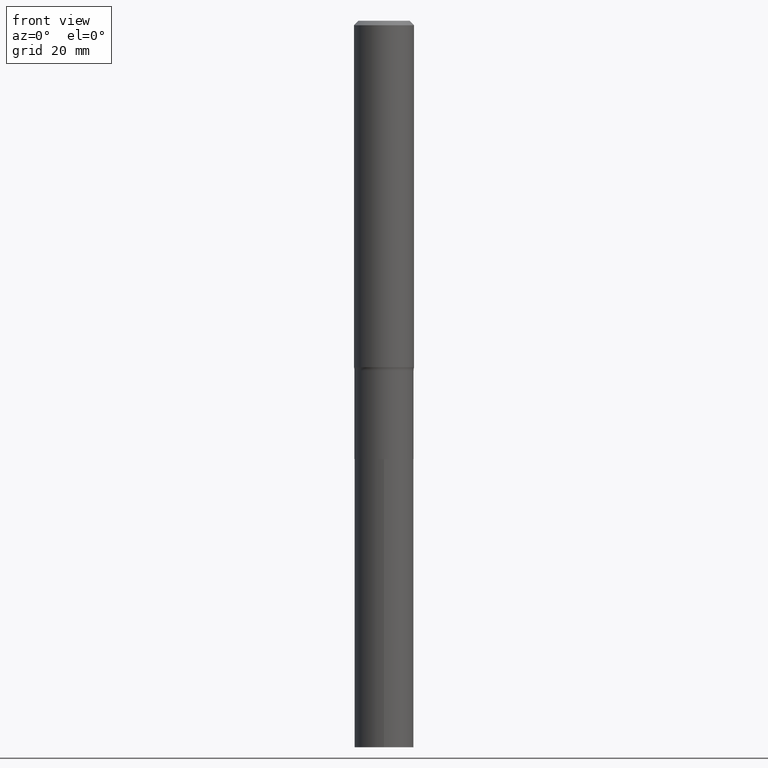
[diagram: clean part render]
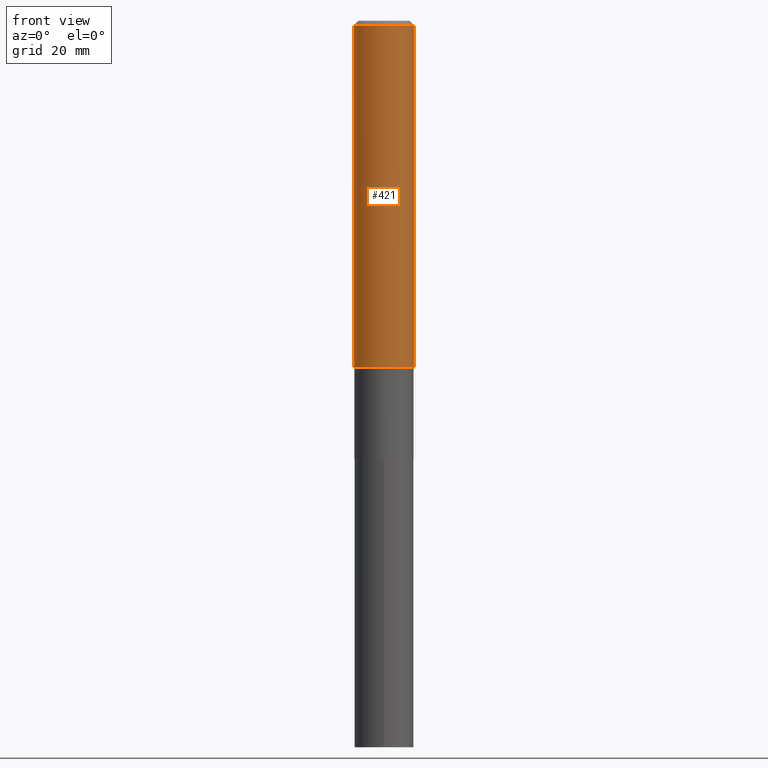
[diagram: same view with one face highlighted and labeled with its STEP entity id]
A machine part, front view. The second image highlights one B-rep face of the part: STEP entity #421.
In plain terms, the highlighted cylindrical surface (edge-blend (fillet) strip) has radius 5.9995 mm, axis along (-0, 0, 1).
Its self-contained STEP definition (entity closure, byte-faithful):
#4 = DIRECTION ( 'NONE',  ( -2.445468806185136877E-29, 3.491481338843145188E-15, 1.000000000000000000 ) ) ;
#8 = EDGE_CURVE ( 'NONE', #22, #366, #183, .T. ) ;
#22 = VERTEX_POINT ( 'NONE', #78 ) ;
#29 = DIRECTION ( 'NONE',  ( 1.000000000000000000, -6.982962677686266711E-15, 4.876176775795936353E-29 ) ) ;
#75 = EDGE_CURVE ( 'NONE', #22, #268, #324, .T. ) ;
#76 = CIRCLE ( 'NONE', #364, 0.2361999999999999933 ) ;
#78 = CARTESIAN_POINT ( 'NONE',  ( -0.2362000000000003264, -7.826649636953230202E-15, -2.722326329823066882 ) ) ;
#88 = ORIENTED_EDGE ( 'NONE', *, *, #233, .T. ) ;
#92 = CARTESIAN_POINT ( 'NONE',  ( 6.657364119838780176E-29, -9.504951578818589752E-15, -2.722326329823066882 ) ) ;
#122 = EDGE_LOOP ( 'NONE', ( #259, #201, #88, #257 ) ) ;
#142 = AXIS2_PLACEMENT_3D ( 'NONE', #350, #208, #29 ) ;
#159 = DIRECTION ( 'NONE',  ( 1.000000000000000000, -6.982962677686263555E-15, 0.000000000000000000 ) ) ;
#173 = CARTESIAN_POINT ( 'NONE',  ( 0.2362000000000001598, -1.649375784469497314E-15, 1.151752954443000929E-29 ) ) ;
#182 = EDGE_CURVE ( 'NONE', #366, #328, #76, .T. ) ;
#183 = LINE ( 'NONE', #433, #454 ) ;
#194 = CARTESIAN_POINT ( 'NONE',  ( 0.2362000000000003264, -1.115432736328808628E-14, -2.722326329823066882 ) ) ;
#201 = ORIENTED_EDGE ( 'NONE', *, *, #75, .T. ) ;
#208 = DIRECTION ( 'NONE',  ( -2.445468806185136597E-29, 3.491481338843145583E-15, 1.000000000000000000 ) ) ;
#233 = EDGE_CURVE ( 'NONE', #268, #328, #351, .T. ) ;
#257 = ORIENTED_EDGE ( 'NONE', *, *, #182, .F. ) ;
#259 = ORIENTED_EDGE ( 'NONE', *, *, #8, .F. ) ;
#268 = VERTEX_POINT ( 'NONE', #194 ) ;
#281 = FACE_OUTER_BOUND ( 'NONE', #122, .T. ) ;
#283 = DIRECTION ( 'NONE',  ( 1.000000000000000000, -6.982962677686266711E-15, 0.000000000000000000 ) ) ;
#300 = DIRECTION ( 'NONE',  ( -2.445468806185136597E-29, 3.491481338843145583E-15, 1.000000000000000000 ) ) ;
#324 = CIRCLE ( 'NONE', #440, 0.2362000000000003264 ) ;
#328 = VERTEX_POINT ( 'NONE', #344 ) ;
#344 = CARTESIAN_POINT ( 'NONE',  ( 0.2361999999999999933, -1.773078968304709711E-15, -0.03543000000000024602 ) ) ;
#349 = CYLINDRICAL_SURFACE ( 'NONE', #142, 0.2362000000000001598 ) ;
#350 = CARTESIAN_POINT ( 'NONE',  ( 0.000000000000000000, 0.000000000000000000, 0.000000000000000000 ) ) ;
#351 = LINE ( 'NONE', #173, #383 ) ;
#364 = AXIS2_PLACEMENT_3D ( 'NONE', #458, #382, #283 ) ;
#366 = VERTEX_POINT ( 'NONE', #381 ) ;
#381 = CARTESIAN_POINT ( 'NONE',  ( -0.2361999999999999933, -3.136025439461542314E-15, -0.03543000000000024602 ) ) ;
#382 = DIRECTION ( 'NONE',  ( -2.445468806185136597E-29, 3.491481338843145583E-15, 1.000000000000000000 ) ) ;
#383 = VECTOR ( 'NONE', #390, 39.37007874015748143 ) ;
#390 = DIRECTION ( 'NONE',  ( -2.445468806185136877E-29, 3.491481338843145188E-15, 1.000000000000000000 ) ) ;
#421 = ADVANCED_FACE ( 'NONE', ( #281 ), #349, .T. ) ;
#433 = CARTESIAN_POINT ( 'NONE',  ( -0.2362000000000001598, 1.678301941865357775E-15, -1.161852468318209598E-29 ) ) ;
#440 = AXIS2_PLACEMENT_3D ( 'NONE', #92, #300, #159 ) ;
#454 = VECTOR ( 'NONE', #4, 39.37007874015748143 ) ;
#458 = CARTESIAN_POINT ( 'NONE',  ( 8.664295980313998742E-31, -1.237031838352135065E-16, -0.03543000000000024602 ) ) ;